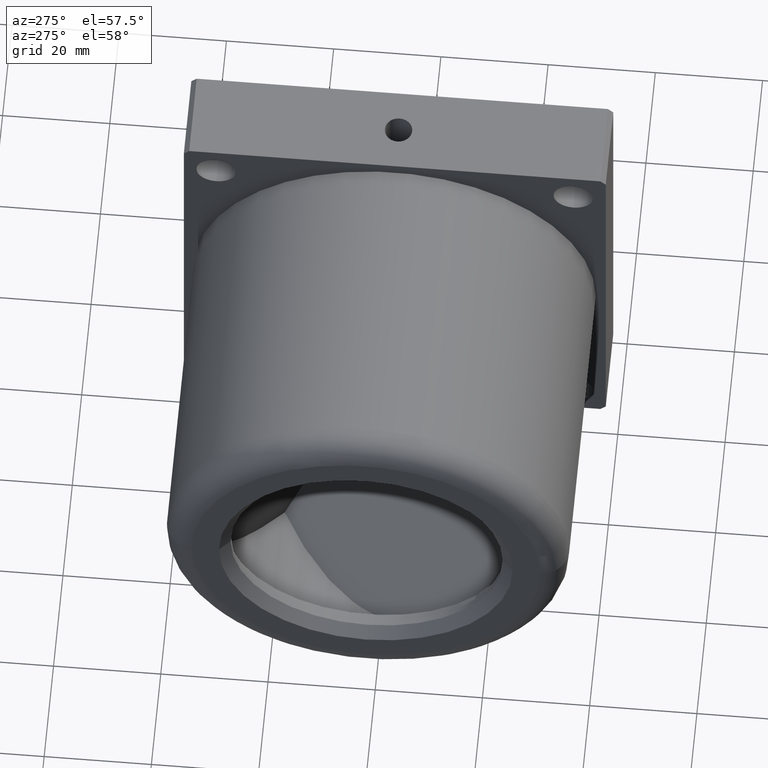
[diagram: clean part render]
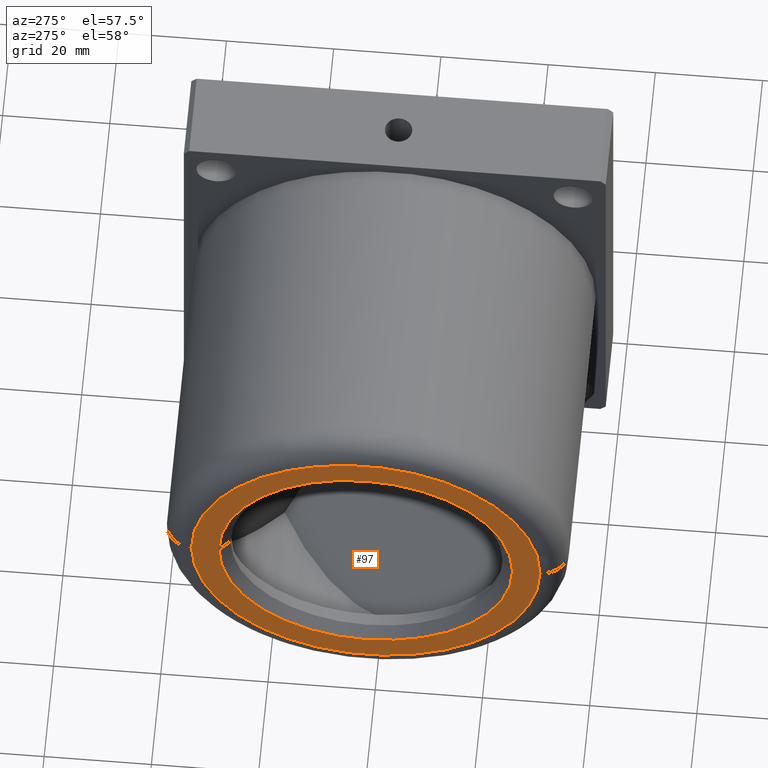
[diagram: same view with one face highlighted and labeled with its STEP entity id]
A machine part, auxiliary view. The second image highlights one B-rep face of the part: STEP entity #97.
In plain terms, the highlighted planar face has unit normal (-1, 0, 0).
Its self-contained STEP definition (entity closure, byte-faithful):
#97 = ADVANCED_FACE ( 'NONE', ( #2832, #7226 ), #8600, .T. ) ;
#394 = CIRCLE ( 'NONE', #5017, 27.39999999999999500 ) ;
#415 = CIRCLE ( 'NONE', #3088, 27.39999999999999500 ) ;
#643 = AXIS2_PLACEMENT_3D ( 'NONE', #8660, #3744, #9507 ) ;
#698 = AXIS2_PLACEMENT_3D ( 'NONE', #9407, #3641, #8558 ) ;
#1091 = DIRECTION ( 'NONE',  ( 1.000000000000000000, -0.0000000000000000000, -0.0000000000000000000 ) ) ;
#1157 = CARTESIAN_POINT ( 'NONE',  ( -78.00000000000000000, -145.4499999999999900, 3.150368854676342100E-013 ) ) ;
#1669 = EDGE_CURVE ( 'NONE', #10380, #3005, #5820, .T. ) ;
#1677 = CIRCLE ( 'NONE', #643, 32.50000000000001400 ) ;
#1713 = ORIENTED_EDGE ( 'NONE', *, *, #8141, .T. ) ;
#2638 = ORIENTED_EDGE ( 'NONE', *, *, #5493, .T. ) ;
#2749 = EDGE_LOOP ( 'NONE', ( #2638, #6769 ) ) ;
#2832 = FACE_BOUND ( 'NONE', #9354, .T. ) ;
#3005 = VERTEX_POINT ( 'NONE', #5536 ) ;
#3088 = AXIS2_PLACEMENT_3D ( 'NONE', #4261, #10003, #5096 ) ;
#3105 = AXIS2_PLACEMENT_3D ( 'NONE', #4872, #10626, #5700 ) ;
#3641 = DIRECTION ( 'NONE',  ( -1.000000000000000000, 0.0000000000000000000, 0.0000000000000000000 ) ) ;
#3744 = DIRECTION ( 'NONE',  ( -1.000000000000000000, 0.0000000000000000000, 0.0000000000000000000 ) ) ;
#4261 = CARTESIAN_POINT ( 'NONE',  ( -78.00000000000000000, -118.0500000000000000, 1.387778780781446000E-014 ) ) ;
#4872 = CARTESIAN_POINT ( 'NONE',  ( -78.00000000000000000, -118.0500000000000000, 1.387778780781446000E-014 ) ) ;
#5017 = AXIS2_PLACEMENT_3D ( 'NONE', #6145, #1091, #6963 ) ;
#5096 = DIRECTION ( 'NONE',  ( 0.0000000000000000000, -1.000000000000000000, 1.099120794378904300E-014 ) ) ;
#5493 = EDGE_CURVE ( 'NONE', #3005, #10380, #1677, .T. ) ;
#5536 = CARTESIAN_POINT ( 'NONE',  ( -78.00000000000000000, -150.5500000000000100, 3.710920459809582700E-013 ) ) ;
#5700 = DIRECTION ( 'NONE',  ( 0.0000000000000000000, -1.000000000000000000, 1.099120794378903600E-014 ) ) ;
#5820 = CIRCLE ( 'NONE', #3105, 32.50000000000001400 ) ;
#6145 = CARTESIAN_POINT ( 'NONE',  ( -78.00000000000000000, -118.0500000000000000, 1.387778780781446000E-014 ) ) ;
#6556 = VERTEX_POINT ( 'NONE', #1157 ) ;
#6749 = EDGE_CURVE ( 'NONE', #9255, #6556, #394, .T. ) ;
#6769 = ORIENTED_EDGE ( 'NONE', *, *, #1669, .T. ) ;
#6963 = DIRECTION ( 'NONE',  ( 0.0000000000000000000, -1.000000000000000000, 1.099120794378904300E-014 ) ) ;
#7226 = FACE_OUTER_BOUND ( 'NONE', #2749, .T. ) ;
#8141 = EDGE_CURVE ( 'NONE', #6556, #9255, #415, .T. ) ;
#8491 = ORIENTED_EDGE ( 'NONE', *, *, #6749, .T. ) ;
#8558 = DIRECTION ( 'NONE',  ( 0.0000000000000000000, -1.000000000000000000, 1.099120794378904000E-014 ) ) ;
#8600 = PLANE ( 'NONE',  #698 ) ;
#8660 = CARTESIAN_POINT ( 'NONE',  ( -78.00000000000000000, -118.0500000000000000, 1.387778780781446000E-014 ) ) ;
#9255 = VERTEX_POINT ( 'NONE', #9556 ) ;
#9354 = EDGE_LOOP ( 'NONE', ( #1713, #8491 ) ) ;
#9407 = CARTESIAN_POINT ( 'NONE',  ( -78.00000000000000000, -143.4499999999999900, 4.704217215932870600E-013 ) ) ;
#9507 = DIRECTION ( 'NONE',  ( 0.0000000000000000000, -1.000000000000000000, 1.099120794378903600E-014 ) ) ;
#9556 = CARTESIAN_POINT ( 'NONE',  ( -78.00000000000000000, -90.65000000000000600, -2.839257776223415400E-013 ) ) ;
#10003 = DIRECTION ( 'NONE',  ( 1.000000000000000000, -0.0000000000000000000, -0.0000000000000000000 ) ) ;
#10380 = VERTEX_POINT ( 'NONE', #10745 ) ;
#10626 = DIRECTION ( 'NONE',  ( -1.000000000000000000, 0.0000000000000000000, 0.0000000000000000000 ) ) ;
#10745 = CARTESIAN_POINT ( 'NONE',  ( -78.00000000000000000, -85.54999999999999700, -3.665282264277862300E-013 ) ) ;